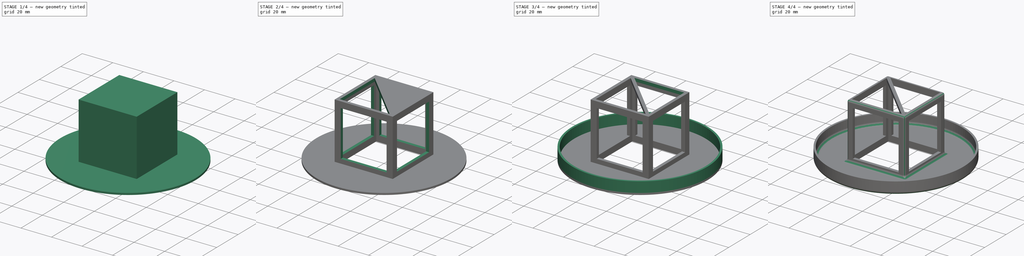
[diagram: build sequence overview — one tinted view per stage of 4, left to right]
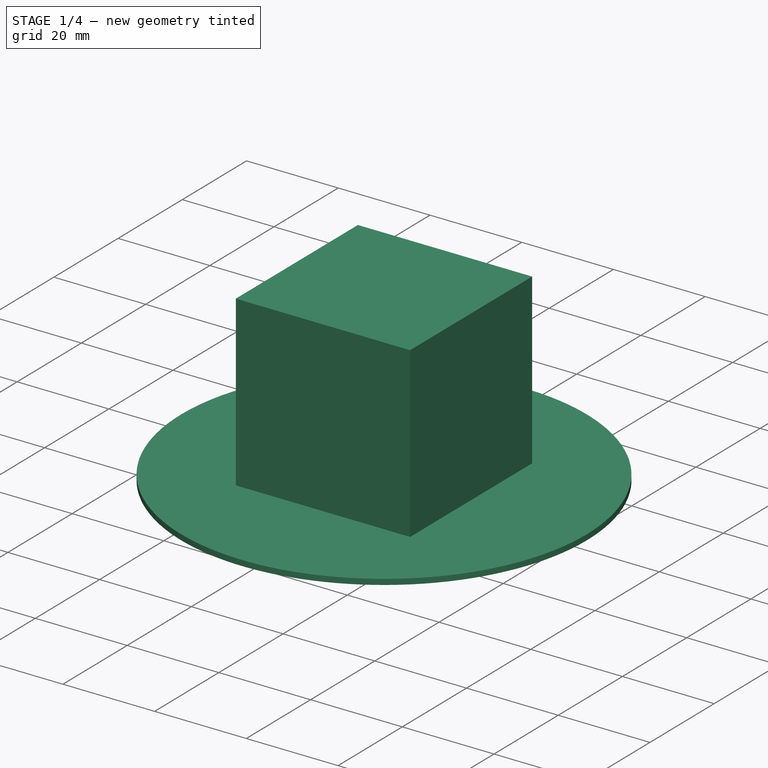
[diagram: stage 1 of 4 — iso view after this stage's code; geometry added in this stage tinted green]
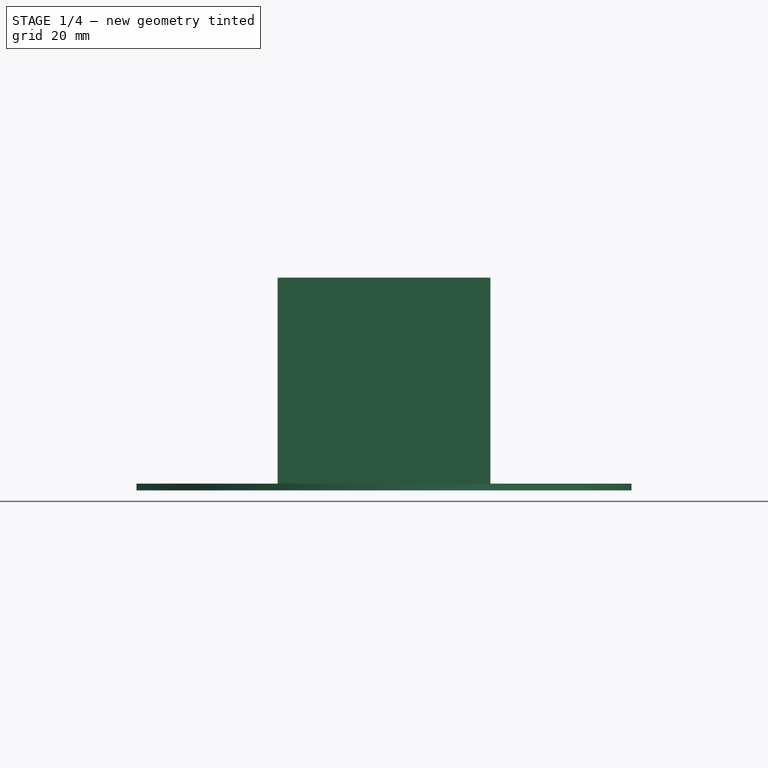
[diagram: stage 1 of 4 — front view after this stage's code; geometry added in this stage tinted green]
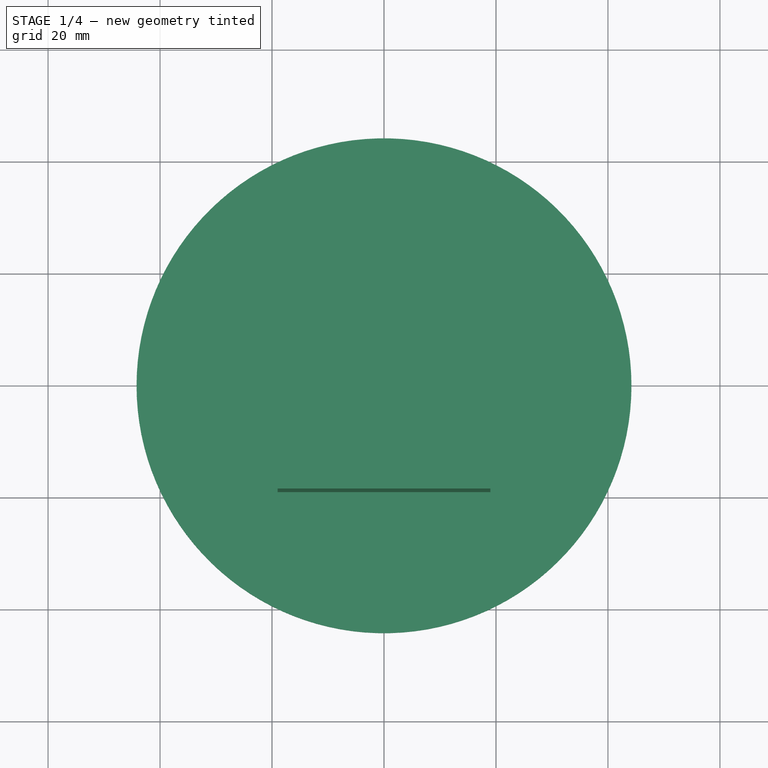
[diagram: stage 1 of 4 — top view after this stage's code; geometry added in this stage tinted green]
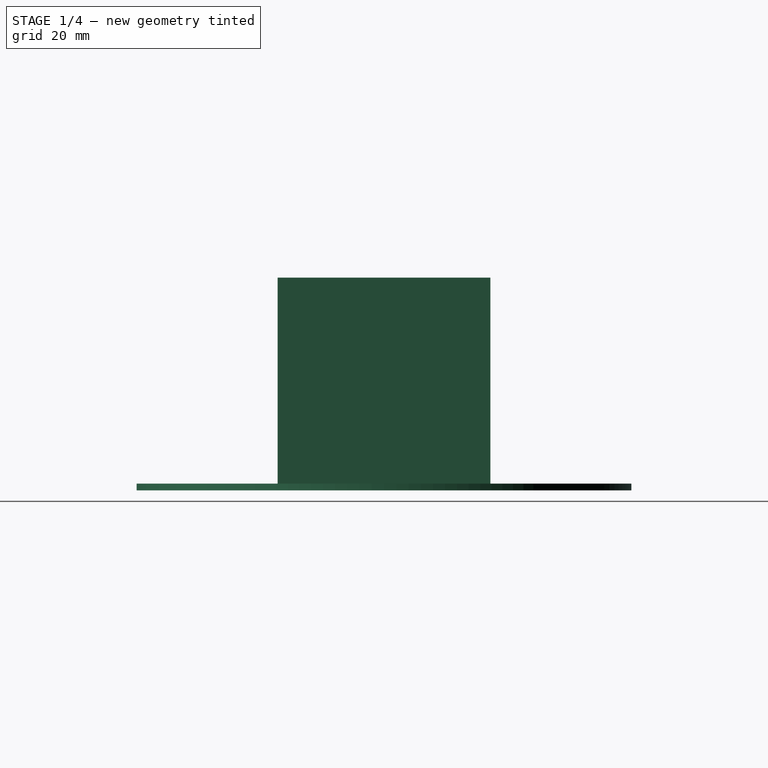
[diagram: stage 1 of 4 — right view after this stage's code; geometry added in this stage tinted green]
FCSTD DOCUMENT  (FreeCAD 2021.614R24301 +3584 (Git))
Label: quattro_stagioni_kratky_1l
License: Creative Commons Attribution-ShareAlike
LicenseURL: http://creativecommons.org/licenses/by-sa/4.0/
objects: Sketcher::SketchObject×8, PartDesign::Pad×4, PartDesign::Pocket×3, PartDesign::Fillet×3, Spreadsheet::Sheet×1, PartDesign::Plane×1, PartDesign::PolarPattern×1, PartDesign::Body×1
note: 43 computed .brp shape members not serialized (recipe doc carries the construction recipe); baked Part::Feature solids carry a one-line shape summary decoded from their .brp

FEATURE [Spreadsheet::Sheet] Spreadsheet  label="parameters"
  PythonMode = false
  cells = A1=Name; B1=Value; A2=thread_dia; B2(thread_dia)==86mm; A3=thread_height; B3(thread_height)==14mm; A4=thread_pitch; B4(thread_pitch)==6mm; A5=thread_depth; B5(thread_depth)==1mm; A6=cube_size; B6(cube_size)==34mm; A7=margin; B7(margin)==0.5mm; A8=strength; B8(strength)==2mm; A9=lid_dia; B9(lid_dia)==86.5mm; A10=lid_strength; B10(lid_strength)==1.2mm
FEATURE [Sketcher::SketchObject] Sketch  label="Master"
  FullyConstrained = true
  MapMode = 5
  Support = -> [XY_Plane]
  expr: .Constraints[12] = <<parameters>>.cube_size
  expr: .Constraints[13] = <<parameters>>.cube_size
  expr: .Constraints[25] = <<parameters>>.strength
  expr: .Constraints[26] = <<parameters>>.strength
  expr: .Constraints[27] = <<parameters>>.thread_dia
  expr: .Constraints[29] = <<parameters>>.thread_dia + <<parameters>>.lid_strength * 2
  sketch-geometry (12):
    g0: Circle CenterX=0 CenterY=0 CenterZ=0 NormalX=0 NormalY=0 NormalZ=1 AngleXU=0 Radius=43
    g1: LineSegment StartX=-17 StartY=17 StartZ=0 EndX=17 EndY=17 EndZ=0
    g2: LineSegment StartX=17 StartY=17 StartZ=0 EndX=17 EndY=-17 EndZ=0
    g3: LineSegment StartX=17 StartY=-17 StartZ=0 EndX=-17 EndY=-17 EndZ=0
    g4: LineSegment StartX=-17 StartY=-17 StartZ=0 EndX=-17 EndY=17 EndZ=0
    g5: LineSegment [constr] StartX=-17 StartY=-17 StartZ=0 EndX=17 EndY=17 EndZ=0
    g6: LineSegment StartX=-19 StartY=19 StartZ=0 EndX=19 EndY=19 EndZ=0
    g7: LineSegment StartX=19 StartY=19 StartZ=0 EndX=19 EndY=-19 EndZ=0
    g8: LineSegment StartX=19 StartY=-19 StartZ=0 EndX=-19 EndY=-19 EndZ=0
    g9: LineSegment StartX=-19 StartY=-19 StartZ=0 EndX=-19 EndY=19 EndZ=0
    g10: LineSegment [constr] StartX=-19 StartY=-19 StartZ=0 EndX=19 EndY=19 EndZ=0
    g11: Circle CenterX=0 CenterY=0 CenterZ=0 NormalX=0 NormalY=0 NormalZ=1 AngleXU=0 Radius=44.2
  constraints (30):
    c: Coincident(g0,g-1)
    c: Coincident(g1,g2)
    c: Coincident(g2,g3)
    c: Coincident(g3,g4)
    c: Coincident(g4,g1)
    c: Horizontal(g1)
    c: Horizontal(g3)
    c: Vertical(g2)
    c: Vertical(g4)
    c: Coincident(g5,g3)
    c: Coincident(g5,g1)
    c: Symmetric(g5,g5,g0)
    c: DistanceY(g2,g2) = 34
    c: DistanceX(g1,g1) = 34
    c: Coincident(g6,g7)
    c: Coincident(g7,g8)
    c: Coincident(g8,g9)
    c: Coincident(g9,g6)
    c: Horizontal(g6)
    c: Horizontal(g8)
    c: Vertical(g7)
    c: Vertical(g9)
    c: Coincident(g10,g8)
    c: Coincident(g10,g6)
    c: Symmetric(g10,g10,g0)
    c: DistanceX(g2,g7) = 2
    c: DistanceY(g7,g2) = 2
    c: Diameter(g0) = 86
    c: Coincident(g11,g0)
    c: Diameter(g11) = 88.4
FEATURE [Sketcher::SketchObject] Sketch001
  ExternalGeometry = -> [Sketch]
  FullyConstrained = true
  MapMode = 5
  Support = -> [XY_Plane]
  sketch-geometry (5):
    g0: LineSegment StartX=-17 StartY=17 StartZ=0 EndX=17 EndY=17 EndZ=0
    g1: LineSegment StartX=17 StartY=17 StartZ=0 EndX=17 EndY=-17 EndZ=0
    g2: LineSegment StartX=17 StartY=-17 StartZ=0 EndX=-17 EndY=-17 EndZ=0
    g3: LineSegment StartX=-17 StartY=-17 StartZ=0 EndX=-17 EndY=17 EndZ=0
    g4: Circle CenterX=0 CenterY=-1e-16 CenterZ=0 NormalX=0 NormalY=0 NormalZ=1 AngleXU=0 Radius=44.2
  constraints (10):
    c: Coincident(g0,g-7)
    c: Coincident(g0,g-5)
    c: Coincident(g1,g0)
    c: Coincident(g1,g-6)
    c: Coincident(g2,g1)
    c: Coincident(g2,g-7)
    c: Coincident(g3,g2)
    c: Coincident(g3,g0)
    c: Coincident(g4,g-3)
    c: Tangent(g4,g-3)
FEATURE [PartDesign::Pad] Pad
  ClaimChildren = false
  Direction = (1,1,1)
  Fit = 0
  FitJoin = 0
  InnerFit = 0
  InnerFitJoin = 0
  InnerTaperAngle = 0
  InnerTaperAngleRev = 0
  Length = 1.2
  Length2 = 100
  Linearize = true
  NewSolid = false
  Profile = -> Sketch001
  Suppress = false
  Type = 0
  expr: Length = <<parameters>>.lid_strength
FEATURE [Sketcher::SketchObject] Sketch002
  ExternalGeometry = -> [Sketch]
  FullyConstrained = true
  MapMode = 5
  Support = -> [XY_Plane]
  sketch-geometry (8):
    g0: LineSegment StartX=-19 StartY=19 StartZ=0 EndX=19 EndY=19 EndZ=0
    g1: LineSegment StartX=19 StartY=19 StartZ=0 EndX=19 EndY=-19 EndZ=0
    g2: LineSegment StartX=19 StartY=-19 StartZ=0 EndX=-19 EndY=-19 EndZ=0
    g3: LineSegment StartX=-19 StartY=-19 StartZ=0 EndX=-19 EndY=19 EndZ=0
    g4: LineSegment StartX=-17 StartY=17 StartZ=0 EndX=17 EndY=17 EndZ=0
    g5: LineSegment StartX=17 StartY=17 StartZ=0 EndX=17 EndY=-17 EndZ=0
    g6: LineSegment StartX=17 StartY=-17 StartZ=0 EndX=-17 EndY=-17 EndZ=0
    g7: LineSegment StartX=-17 StartY=-17 StartZ=0 EndX=-17 EndY=17 EndZ=0
  constraints (16):
    c: Coincident(g0,g-4)
    c: Coincident(g0,g-6)
    c: Coincident(g1,g0)
    c: Coincident(g1,g-6)
    c: Coincident(g2,g1)
    c: Coincident(g2,g-5)
    c: Coincident(g3,g2)
    c: Coincident(g3,g0)
    c: Coincident(g4,g-10)
    c: Coincident(g4,g-8)
    c: Coincident(g5,g4)
    c: Coincident(g5,g-9)
    c: Coincident(g6,g5)
    c: Coincident(g6,g-10)
    c: Coincident(g7,g6)
    c: Coincident(g7,g4)
FEATURE [PartDesign::Pad] Pad001
  BaseFeature = -> Pad
  ClaimChildren = false
  Direction = (1,1,1)
  Fit = 0
  FitJoin = 0
  InnerFit = 0
  InnerFitJoin = 0
  InnerTaperAngle = 0
  InnerTaperAngleRev = 0
  Length = 36
  Length2 = 100
  Linearize = true
  NewSolid = false
  Profile = -> Sketch002
  Suppress = false
  Type = 0
  expr: Length = <<parameters>>.cube_size + <<parameters>>.strength
FEATURE [PartDesign::Plane] DatumPlane
  AttachmentOffset = pos=(0,0,36) rot=(0,0,1;0rad)
  Length = 88.4
  MapMode = 5
  MinimumLength = 10
  MinimumWidth = 10
  Placement = pos=(0,0,36) rot=(0,0,1;0rad)
  ResizeMode = 0
  Support = -> [XY_Plane]
  Width = 88.2559
  expr: .AttachmentOffset.Base.z = <<parameters>>.cube_size + <<parameters>>.strength
FEATURE [Sketcher::SketchObject] Sketch003
  ExternalGeometry = -> [Sketch]
  FullyConstrained = true
  MapMode = 5
  Placement = pos=(0,0,36) rot=(0,0,1;0rad)
  Support = -> [DatumPlane]
  sketch-geometry (4):
    g0: LineSegment StartX=-19 StartY=19 StartZ=0 EndX=19 EndY=19 EndZ=0
    g1: LineSegment StartX=19 StartY=-19 StartZ=0 EndX=19 EndY=19 EndZ=0
    g2: LineSegment StartX=-19 StartY=-19 StartZ=0 EndX=19 EndY=-19 EndZ=0
    g3: LineSegment StartX=-19 StartY=19 StartZ=0 EndX=-19 EndY=-19 EndZ=0
  constraints (8):
    c: Coincident(g0,g-6)
    c: Coincident(g0,g-4)
    c: Coincident(g1,g-5)
    c: Coincident(g1,g0)
    c: Coincident(g2,g-6)
    c: Coincident(g2,g1)
    c: Coincident(g3,g0)
    c: Coincident(g3,g2)
FEATURE [PartDesign::Pad] Pad002
  BaseFeature = -> Pad001
  ClaimChildren = false
  Direction = (1,1,1)
  Fit = 0
  FitJoin = 0
  InnerFit = 0
  InnerFitJoin = 0
  InnerTaperAngle = 0
  InnerTaperAngleRev = 0
  Length = 2
  Length2 = 100
  Linearize = true
  NewSolid = false
  Profile = -> Sketch003
  Suppress = false
  Type = 0
  expr: Length = <<parameters>>.strength
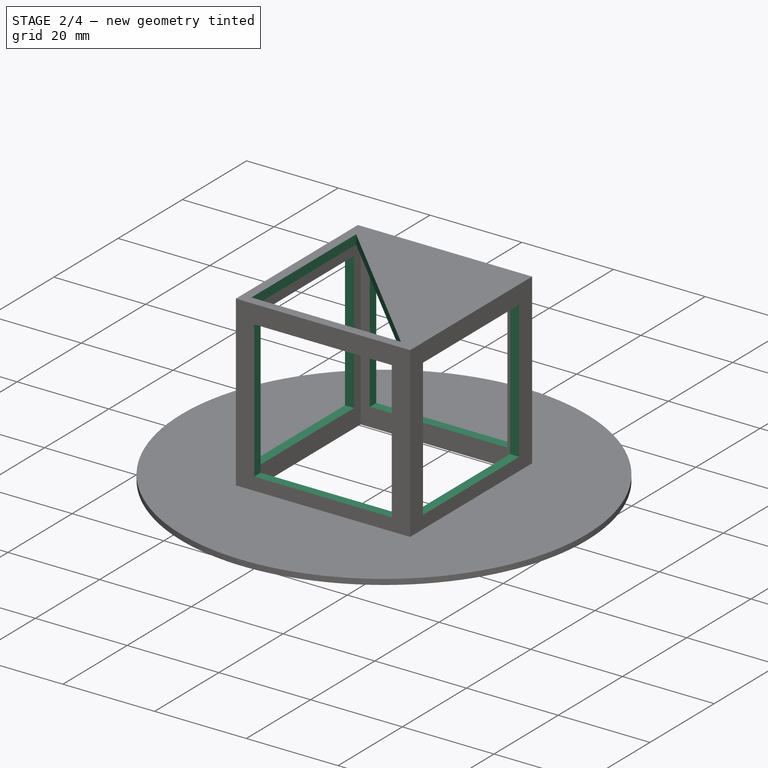
[diagram: stage 2 of 4 — iso view after this stage's code; geometry added in this stage tinted green]
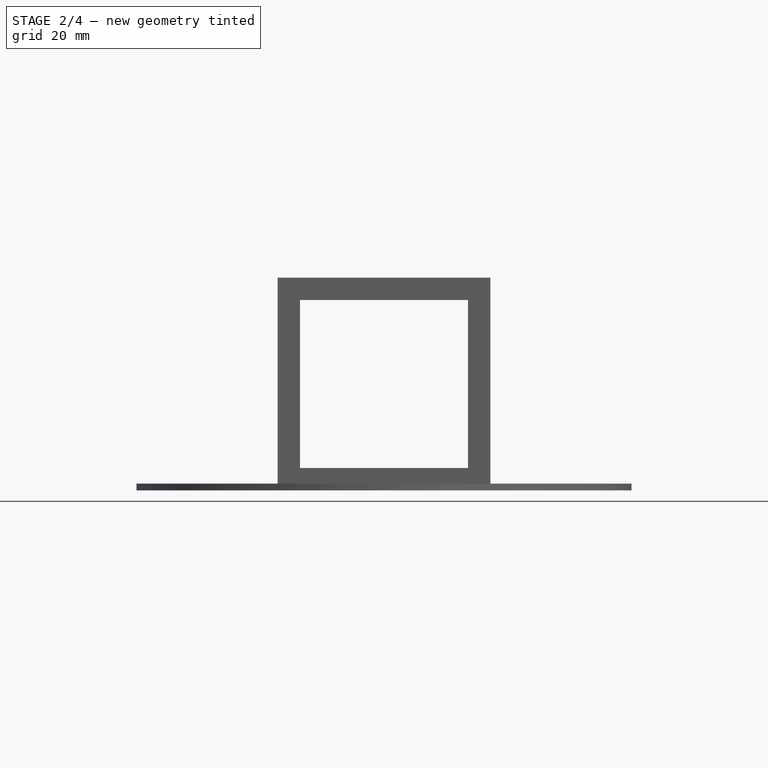
[diagram: stage 2 of 4 — front view after this stage's code; geometry added in this stage tinted green]
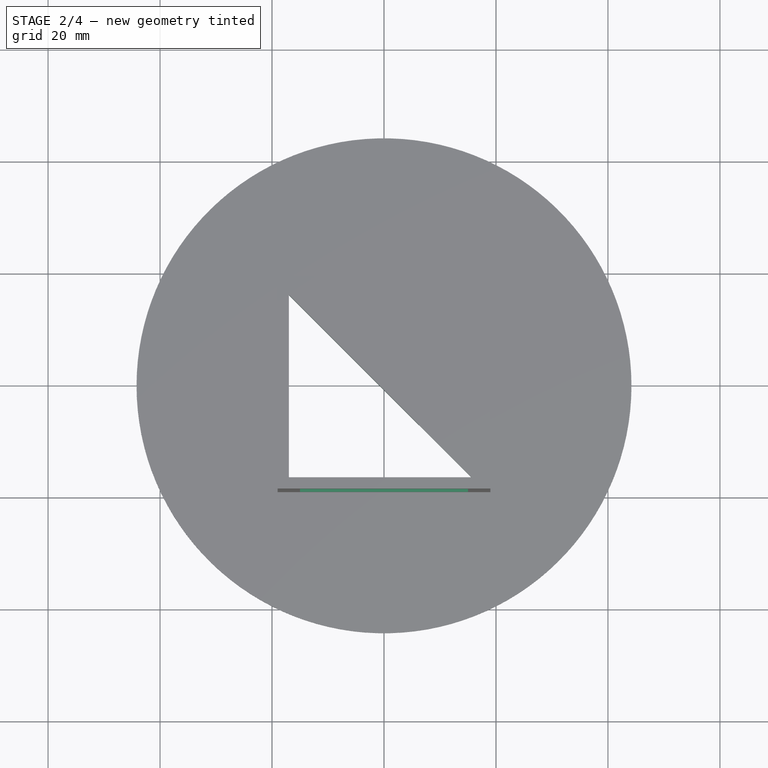
[diagram: stage 2 of 4 — top view after this stage's code; geometry added in this stage tinted green]
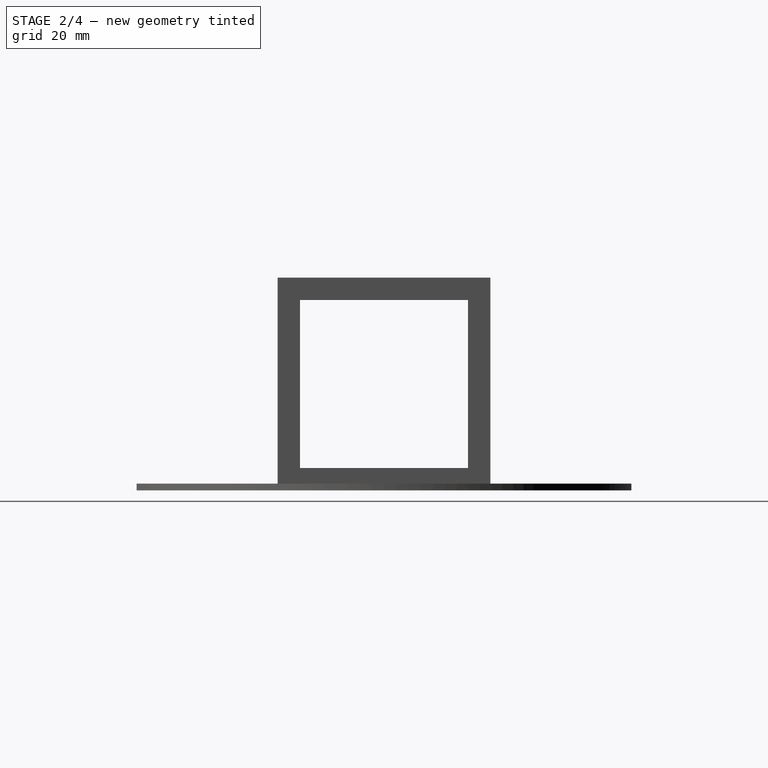
[diagram: stage 2 of 4 — right view after this stage's code; geometry added in this stage tinted green]
FEATURE [Sketcher::SketchObject] Sketch004
  FullyConstrained = true
  MapMode = 5
  Placement = pos=(0,0,0) rot=(0.57735,0.57735,0.57735;2.0944rad)
  Support = -> [YZ_Plane]
  expr: .Constraints[10] = 2 * <<parameters>>.strength
  expr: .Constraints[7] = <<parameters>>.cube_size - 2 * <<parameters>>.strength
  expr: .Constraints[8] = <<parameters>>.cube_size - 2 * <<parameters>>.strength
  sketch-geometry (4):
    g0: LineSegment StartX=-15 StartY=34 StartZ=0 EndX=15 EndY=34 EndZ=0
    g1: LineSegment StartX=15 StartY=34 StartZ=0 EndX=15 EndY=4 EndZ=0
    g2: LineSegment StartX=15 StartY=4 StartZ=0 EndX=-15 EndY=4 EndZ=0
    g3: LineSegment StartX=-15 StartY=4 StartZ=0 EndX=-15 EndY=34 EndZ=0
  constraints (11):
    c: Coincident(g0,g1)
    c: Coincident(g1,g2)
    c: Coincident(g2,g3)
    c: Coincident(g3,g0)
    c: Horizontal(g2)
    c: Vertical(g1)
    c: Vertical(g3)
    c: DistanceX(g0,g0) = 30
    c: DistanceY(g1,g1) = 30
    c: Symmetric(g0,g0,g-2)
    c: DistanceY(g-1,g1) = 4
FEATURE [PartDesign::Pocket] Pocket
  BaseFeature = -> Pad002
  ClaimChildren = false
  Fit = 0
  FitJoin = 0
  InnerFit = 0
  InnerFitJoin = 0
  InnerTaperAngle = 0
  InnerTaperAngleRev = 0
  Length = 5
  Length2 = 100
  Linearize = true
  Midplane = true
  NewSolid = false
  Profile = -> Sketch004
  Suppress = false
  Type = 1
FEATURE [Sketcher::SketchObject] Sketch005
  FullyConstrained = true
  MapMode = 5
  Placement = pos=(0,0,0) rot=(1,0,0;1.5708rad)
  Support = -> [XZ_Plane]
  expr: .Constraints[10] = 2 * <<parameters>>.strength
  expr: .Constraints[8] = <<parameters>>.cube_size - 2 * <<parameters>>.strength
  expr: .Constraints[9] = <<parameters>>.cube_size - 2 * <<parameters>>.strength
  sketch-geometry (4):
    g0: LineSegment StartX=-15 StartY=34 StartZ=0 EndX=15 EndY=34 EndZ=0
    g1: LineSegment StartX=15 StartY=34 StartZ=0 EndX=15 EndY=4 EndZ=0
    g2: LineSegment StartX=15 StartY=4 StartZ=0 EndX=-15 EndY=4 EndZ=0
    g3: LineSegment StartX=-15 StartY=4 StartZ=0 EndX=-15 EndY=34 EndZ=0
  constraints (11):
    c: Coincident(g0,g1)
    c: Coincident(g1,g2)
    c: Coincident(g2,g3)
    c: Coincident(g3,g0)
    c: Horizontal(g2)
    c: Vertical(g1)
    c: Vertical(g3)
    c: Symmetric(g0,g0,g-2)
    c: DistanceY(g1,g1) = 30
    c: DistanceX(g0,g0) = 30
    c: DistanceY(g-1,g1) = 4
FEATURE [PartDesign::Pocket] Pocket001
  BaseFeature = -> Pocket
  ClaimChildren = false
  Fit = 0
  FitJoin = 0
  InnerFit = 0
  InnerFitJoin = 0
  InnerTaperAngle = 0
  InnerTaperAngleRev = 0
  Length = 5
  Length2 = 100
  Linearize = true
  Midplane = true
  NewSolid = false
  Profile = -> Sketch005
  Suppress = false
  Type = 1
FEATURE [Sketcher::SketchObject] Sketch006
  ExternalGeometry = -> [Sketch]
  FullyConstrained = true
  MapMode = 5
  Support = -> [XY_Plane]
  expr: .Constraints[5] = 0.5 * <<parameters>>.strength
  sketch-geometry (5):
    g0: LineSegment StartX=-17 StartY=15.5858 StartZ=0 EndX=-17 EndY=-17 EndZ=0
    g1: LineSegment [constr] StartX=-17 StartY=17 StartZ=0 EndX=0 EndY=0 EndZ=0
    g2: LineSegment [constr] StartX=-1.41421 StartY=0 StartZ=0 EndX=-0.707107 EndY=0.707107 EndZ=0
    g3: LineSegment StartX=-17 StartY=-17 StartZ=0 EndX=15.5858 EndY=-17 EndZ=0
    g4: LineSegment StartX=-17 StartY=15.5858 StartZ=0 EndX=15.5858 EndY=-17 EndZ=0
  constraints (14):
    c: PointOnObject(g2,g-1)
    c: Coincident(g1,g-6)
    c: Coincident(g1,g-1)
    c: PointOnObject(g2,g1)
    c: Perpendicular(g2,g1)
    c: Distance(g2) = 1
    c: PointOnObject(g0,g-6)
    c: Coincident(g0,g-6)
    c: Coincident(g3,g0)
    c: PointOnObject(g3,g-5)
    c: Coincident(g4,g0)
    c: Coincident(g4,g3)
    c: PointOnObject(g2,g4)
    c: Parallel(g4,g1)
FEATURE [PartDesign::Pocket] Pocket002
  BaseFeature = -> Pocket001
  ClaimChildren = false
  Fit = 0
  FitJoin = 0
  InnerFit = 0
  InnerFitJoin = 0
  InnerTaperAngle = 0
  InnerTaperAngleRev = 0
  Length = 5
  Length2 = 100
  Linearize = true
  NewSolid = false
  Profile = -> Sketch006
  Reversed = true
  Suppress = false
  Type = 1
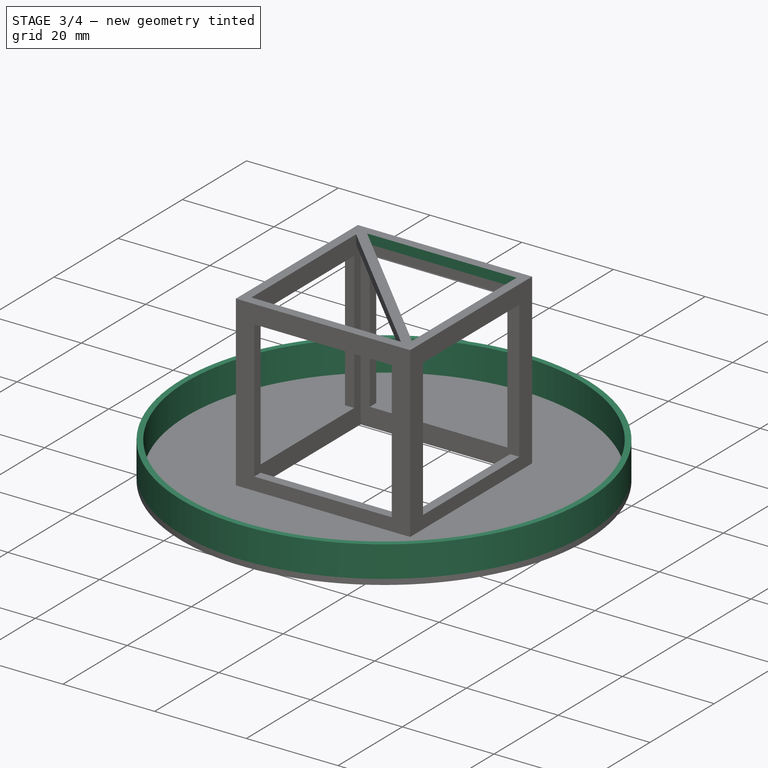
[diagram: stage 3 of 4 — iso view after this stage's code; geometry added in this stage tinted green]
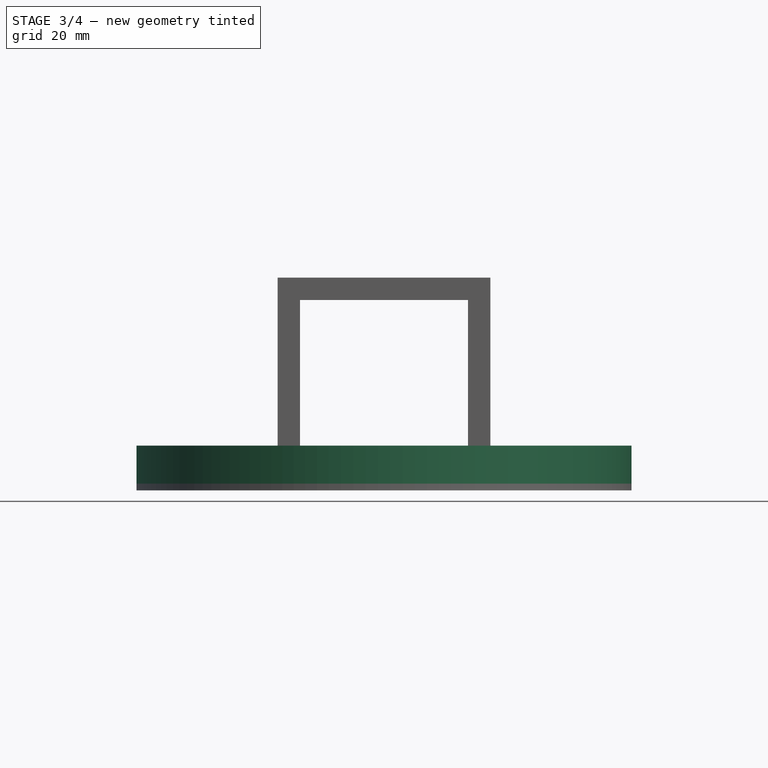
[diagram: stage 3 of 4 — front view after this stage's code; geometry added in this stage tinted green]
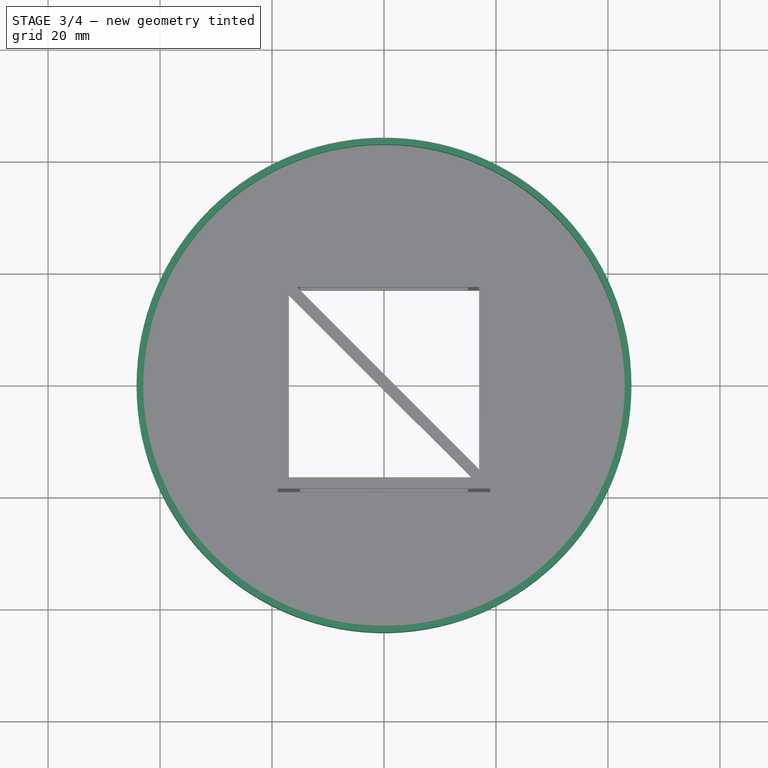
[diagram: stage 3 of 4 — top view after this stage's code; geometry added in this stage tinted green]
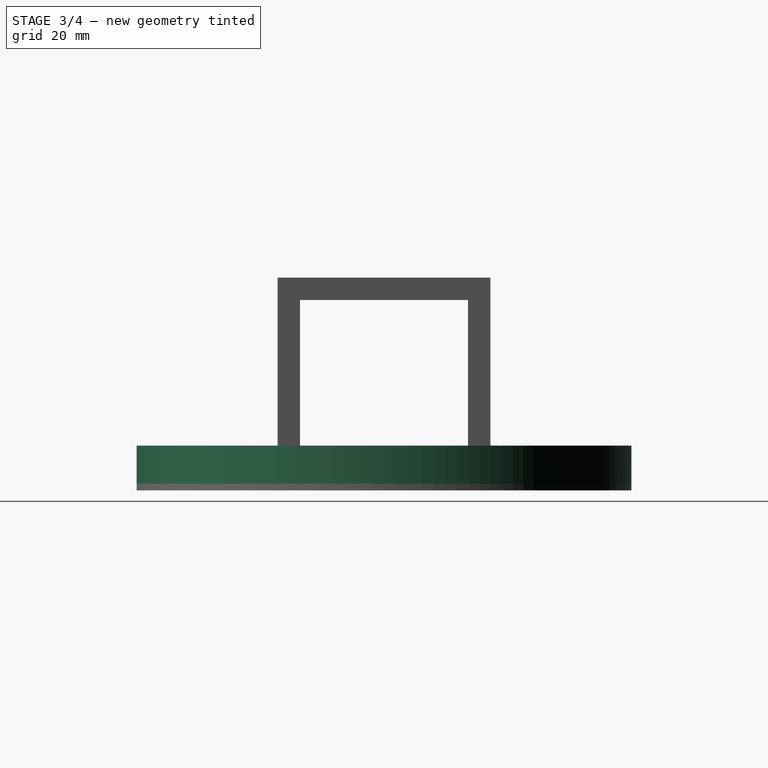
[diagram: stage 3 of 4 — right view after this stage's code; geometry added in this stage tinted green]
FEATURE [Sketcher::SketchObject] Sketch007
  ExternalGeometry = -> [Sketch]
  FullyConstrained = true
  MapMode = 5
  Support = -> [XY_Plane]
  sketch-geometry (2):
    g0: Circle CenterX=0 CenterY=-1e-16 CenterZ=0 NormalX=0 NormalY=0 NormalZ=1 AngleXU=0 Radius=43
    g1: Circle CenterX=0 CenterY=-1e-16 CenterZ=0 NormalX=0 NormalY=0 NormalZ=1 AngleXU=0 Radius=44.2
  constraints (4):
    c: Coincident(g0,g-4)
    c: Tangent(g0,g-4)
    c: Coincident(g1,g0)
    c: Tangent(g1,g-3)
FEATURE [PartDesign::PolarPattern] PolarPattern
  Angle = 360
  Axis = -> Sketch006 [N_Axis]
  BaseFeature = -> Pocket002
  CopyShape = false
  NewSolid = false
  Occurrences = 2
  OriginalSubs = -> [Pocket002]
  Originals = -> [Pocket002]
  ParallelTransform = true
  SubTransform = true
  Suppress = false
FEATURE [PartDesign::Pad] Pad003
  BaseFeature = -> PolarPattern
  ClaimChildren = false
  Direction = (1,1,1)
  Fit = 0
  FitJoin = 0
  InnerFit = 0
  InnerFitJoin = 0
  InnerTaperAngle = 0
  InnerTaperAngleRev = 0
  Length = 8
  Length2 = 100
  Linearize = true
  NewSolid = false
  Profile = -> Sketch007
  Suppress = false
  Type = 0
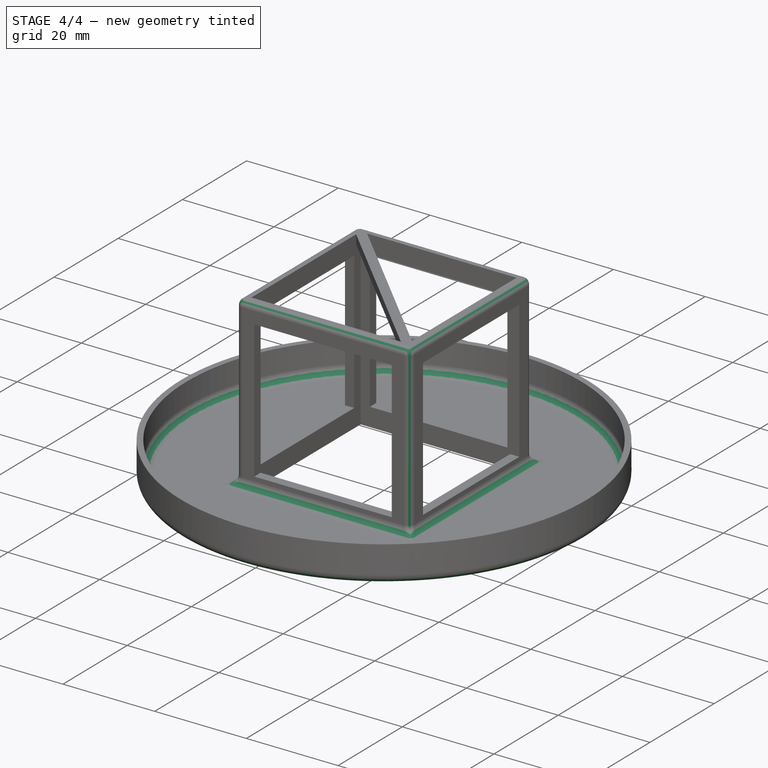
[diagram: stage 4 of 4 — iso view after this stage's code; geometry added in this stage tinted green]
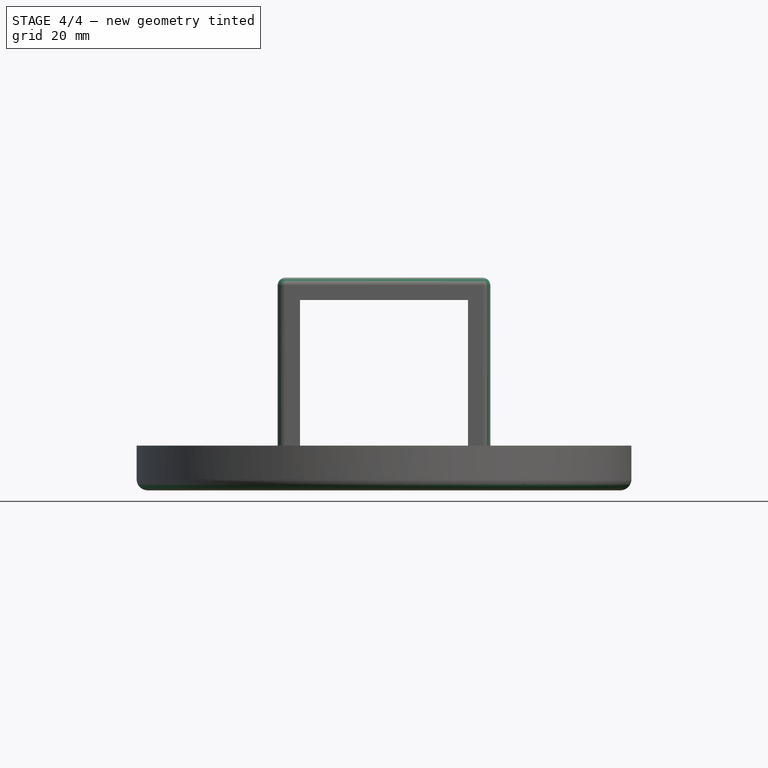
[diagram: stage 4 of 4 — front view after this stage's code; geometry added in this stage tinted green]
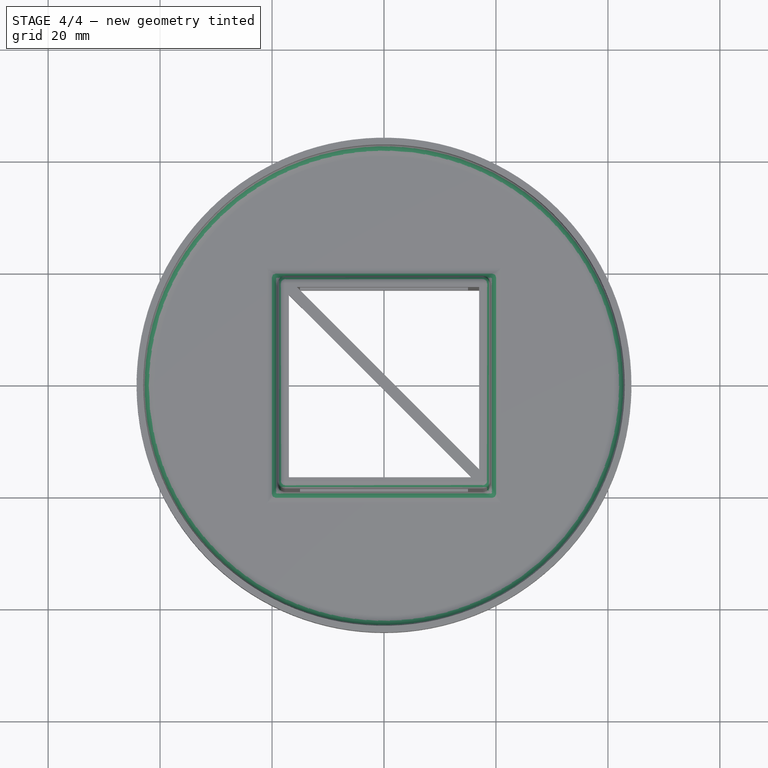
[diagram: stage 4 of 4 — top view after this stage's code; geometry added in this stage tinted green]
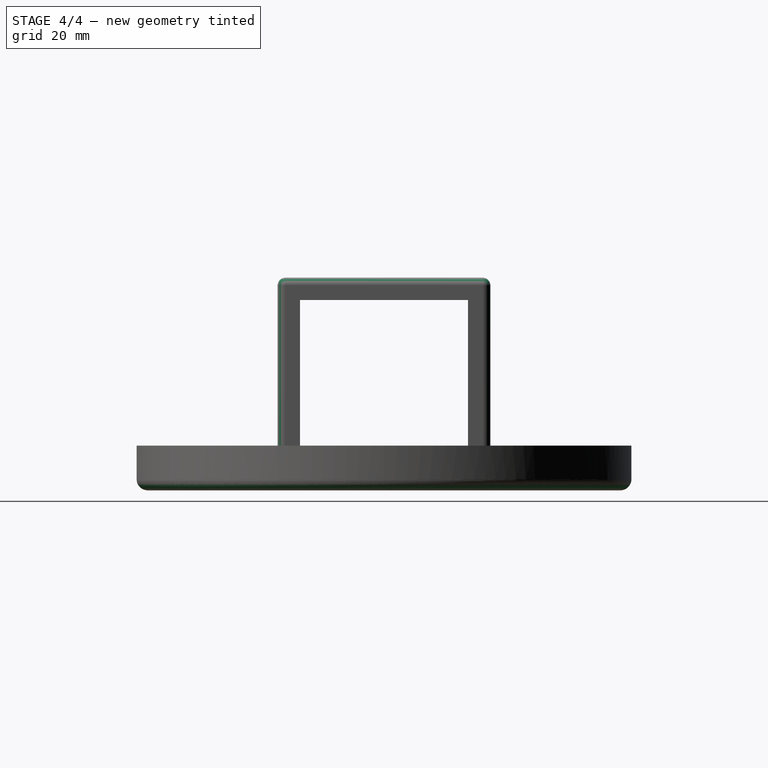
[diagram: stage 4 of 4 — right view after this stage's code; geometry added in this stage tinted green]
FEATURE [PartDesign::Fillet] Fillet
  Base = -> Pad003 [Edge41,Edge40,Edge39,Edge38,Edge20]
  BaseFeature = -> Pad003
  NewSolid = false
  Radius = 2
  SupportTransform = false
  Suppress = false
FEATURE [PartDesign::Fillet] Fillet001
  Base = -> Fillet [Edge22]
  BaseFeature = -> Fillet
  NewSolid = false
  Radius = 2
  SupportTransform = false
  Suppress = false
FEATURE [PartDesign::Fillet] Fillet002
  Base = -> Fillet001 [Edge139,Edge140,Edge138,Edge137,Edge133,Edge129,Edge127,Edge130]
  BaseFeature = -> Fillet001
  NewSolid = false
  Radius = 1.4
  SupportTransform = false
  Suppress = false
FEATURE [PartDesign::Body] Body
  AutoGroupSolids = false
  ExportMode = 0
  Group = -> [Sketch,Sketch001,Pad,Sketch002,Pad001,DatumPlane,Sketch003,Pad002,Sketch004,Pocket,Sketch005,Pocket001,Sketch006,Pocket002,Sketch007,PolarPattern,Pad003,Fillet,Fillet001,Fillet002]
  Origin = -> Origin
  Tip = -> Fillet002
  _ExportChildren = -> [Sketch,Pad,Pad001,DatumPlane,Pad002,Pocket,Pocket001,Pocket002,PolarPattern,Pad003,Fillet,Fillet001,Fillet002]
  _GroupVersion = 1
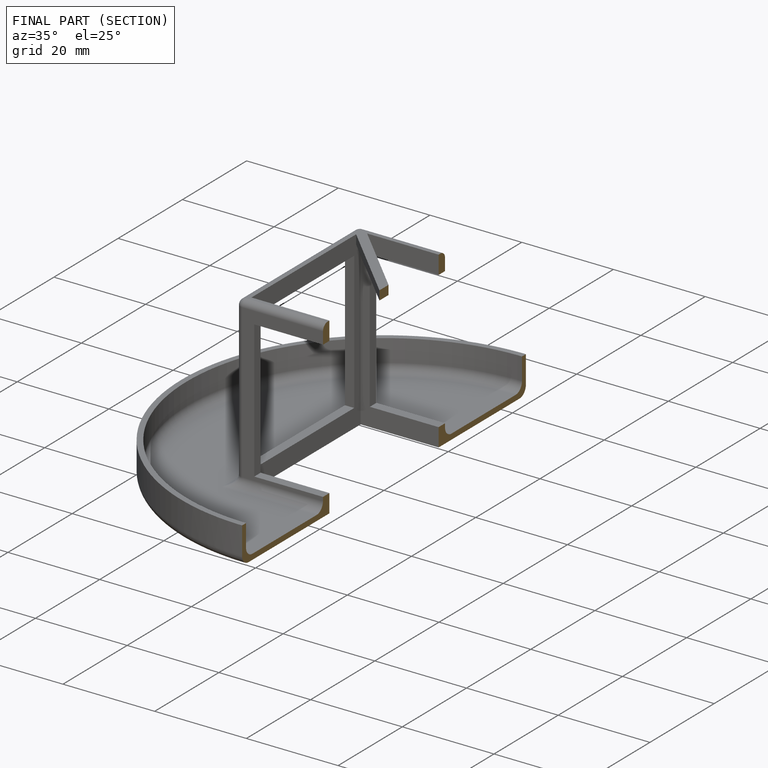
[diagram: finished part — half-section view (interior)]
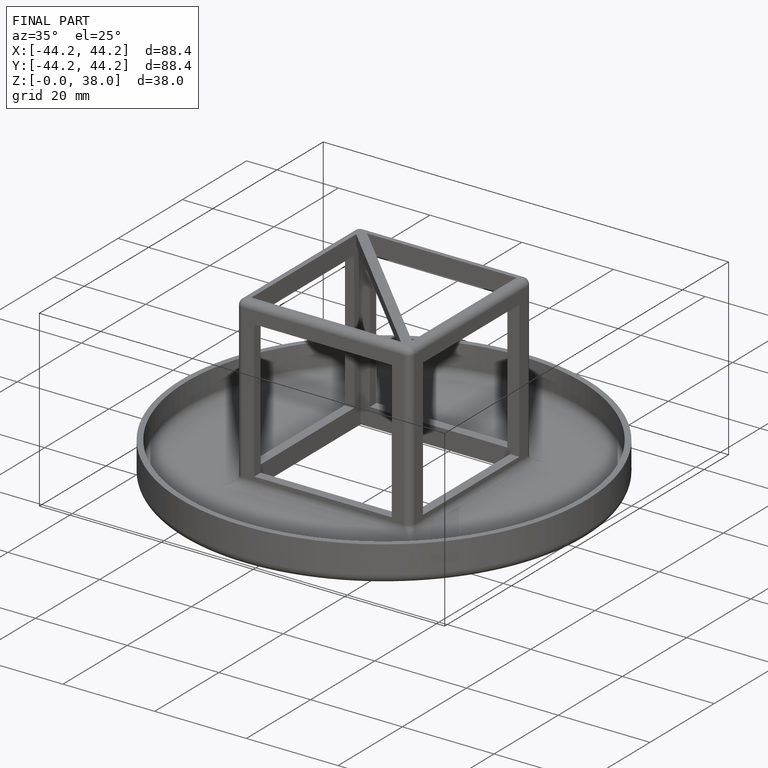
[diagram: finished part — iso view with bounding-box wireframe]
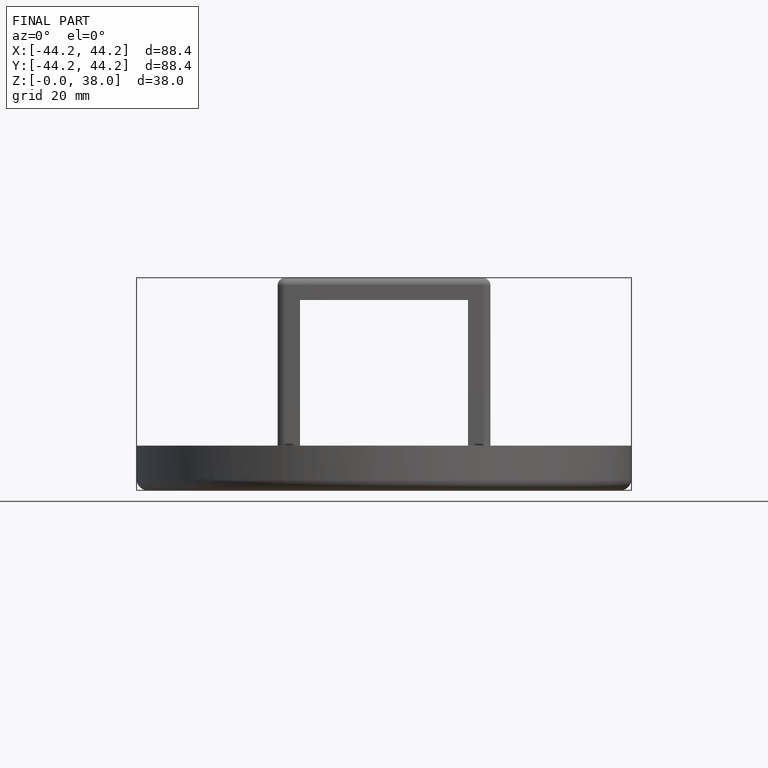
[diagram: finished part — front view with bounding-box wireframe]
